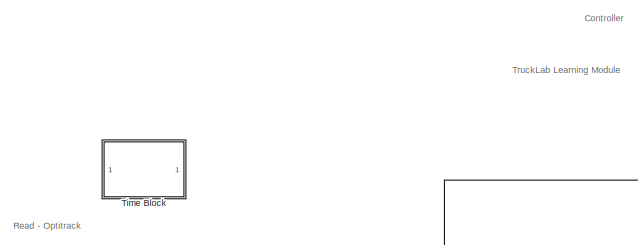
[diagram: root canvas - part 1/2, top left region]
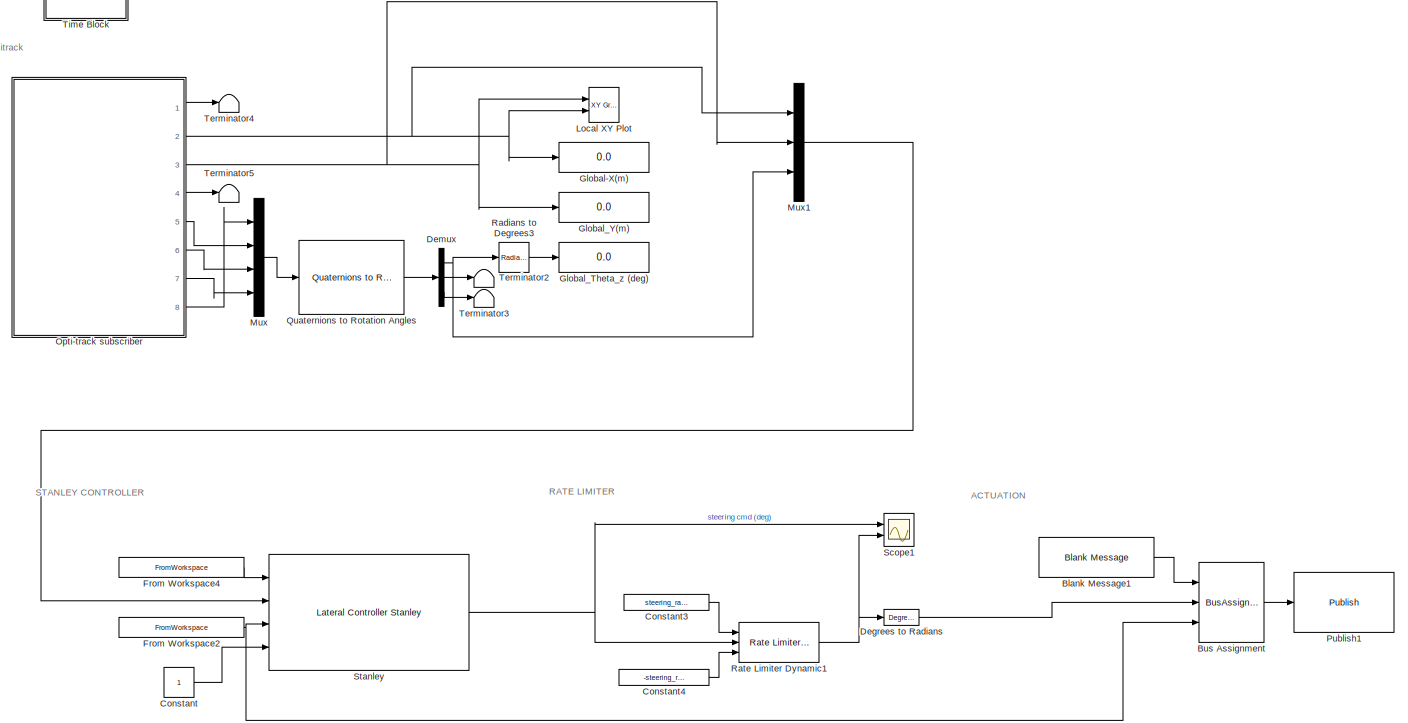
[diagram: root canvas - part 2/2, most of the canvas]
MODEL slx_dc4cd03e8d19
KIND model
CONFIG AbsTol = auto
CONFIG EnableMultiTasking = off
CONFIG FixedStep = auto
CONFIG MaxStep = auto
CONFIG MinStep = auto
CONFIG RelTol = 1e-3
CONFIG SampleTimeConstraint = Unconstrained
CONFIG Solver = FixedStepAuto
CONFIG SolverName = FixedStepAuto
CONFIG StartTime = 0.0
CONFIG StopTime = inf
WORKSPACE source: mxarray member
WORKSPACE SL_ROS_VariableLengthArrays_MaxSizes: object (value not decoded)
BLOCK [Reference] Blank Message1  REF=robotlib/Blank Message
  Ports = [0, 1]
  SourceBlock = robotlib/Blank Message
  SourceProductBaseCode = RR
  SourceType = ROS Blank Message
BLOCK [BusAssignment] Bus Assignment
  AssignedSignals = Angular.Z,Linear.X
  DialogController = Simulink.DDGSource_BusAssignment
  Ports = [3, 1]
BLOCK [Constant] Constant
BLOCK [Constant] Constant3
  Value = steering_rate_limit
BLOCK [Constant] Constant4
  Value = -steering_rate_limit
BLOCK [Reference] Degrees to Radians  REF=simulink_extras/Transformations/Degrees to
Radians
  Ports = [1, 1]
  SourceBlock = simulink_extras/Transformations/Degrees to\nRadians
  SourceProductBaseCode = SL
  SourceType = DegreesToRadians
BLOCK [Demux] Demux
  Outputs = 3
  Ports = [1, 3]
BLOCK [FromWorkspace] From Workspace2
  VariableName = ref_vel
BLOCK [FromWorkspace] From Workspace4
  VariableName = ref_pose
BLOCK [Display] Global-X(m)
  Decimation = 1
  Ports = [1]
BLOCK [Display] Global_Theta_z (deg)
  Decimation = 1
  Ports = [1]
BLOCK [Display] Global_Y(m)
  Decimation = 1
  Ports = [1]
BLOCK [Reference] Local XY Plot  REF=simulink/Sinks/XY Graph
  Ports = [2]
  SourceBlock = simulink/Sinks/XY Graph
  SourceProductBaseCode = SL
  SourceType = XY scope.
BLOCK [Mux] Mux
  DisplayOption = bar
  Ports = [4, 1]
BLOCK [Mux] Mux1
  DisplayOption = bar
  Inputs = 3
  Ports = [3, 1]
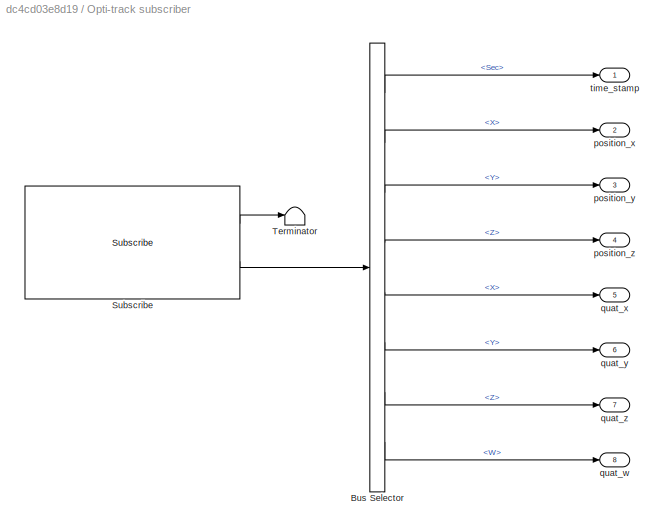
BLOCK [SubSystem] Opti-track subscriber
  Ports = [0, 8]
  RequestExecContextInheritance = off
BLOCK [BusSelector] Opti-track subscriber/Bus Selector
  OutputSignals = Header.Stamp.Sec,Pose.Position.X,Pose.Position.Y,Pose.Position.Z,Pose.Orientation.X,Pose.Orientation.Y,Pose.Orientation.Z,Pose.Orientation.W
  Ports = [1, 8]
BLOCK [Reference] Opti-track subscriber/Subscribe  REF=robotlib/Subscribe
  Ports = [0, 2]
  SourceBlock = robotlib/Subscribe
  SourceProductBaseCode = RR
  SourceType = ROS Subscribe
BLOCK [Terminator] Opti-track subscriber/Terminator
BLOCK [Outport] Opti-track subscriber/position_x
  Port = 2
BLOCK [Outport] Opti-track subscriber/position_y
  Port = 3
BLOCK [Outport] Opti-track subscriber/position_z
  Port = 4
BLOCK [Outport] Opti-track subscriber/quat_w
  Port = 8
BLOCK [Outport] Opti-track subscriber/quat_x
  Port = 5
BLOCK [Outport] Opti-track subscriber/quat_y
  Port = 6
BLOCK [Outport] Opti-track subscriber/quat_z
  Port = 7
BLOCK [Outport] Opti-track subscriber/time_stamp
BLOCK [Reference] Publish1  REF=robotlib/Publish
  Ports = [1]
  SourceBlock = robotlib/Publish
  SourceProductBaseCode = RR
  SourceType = ROS Publish
BLOCK [Reference] Quaternions to Rotation Angles  REF=sharedtransform/Quaternions to Rotation Angles
  AttributesFormatString = Rotation Order: %<rotationOrder>
  Ports = [1, 1]
  SourceBlock = sharedtransform/Quaternions to Rotation Angles
  SourceProductBaseCode = AE,PW,MT,VE,VP
  SourceType = Quat2Ang
BLOCK [Reference] Radians to Degrees3  REF=simulink_extras/Transformations/Radians
to Degrees
  Ports = [1, 1]
  SourceBlock = simulink_extras/Transformations/Radians\nto Degrees
  SourceProductBaseCode = SL
  SourceType = RadiansToDegrees
BLOCK [Reference] Rate Limiter Dynamic1  REF=simulink/Discontinuities/Rate Limiter
Dynamic
  Ports = [3, 1]
  SourceBlock = simulink/Discontinuities/Rate Limiter\nDynamic
  SourceProductBaseCode = SL
  SourceType = Rate Limiter Dynamic
BLOCK [Scope] Scope1
  Floating = off
  NumInputPorts = 2
  Ports = [2]
  ScopeSpecificationString = Simulink.scopes.TimeScopeBlockCfg('CurrentConfiguration', extmgr.ConfigurationSet(extmgr.Configuration('Core','General UI',true),extmgr.Configuration('Core','Source UI',true),extmgr.Configuration('Sources','WiredSimulink',true,'DataLoggingVariableName','ScopeData2'),extmgr.Configuration('Visuals','Time Domain',true,'SerializedDisplays',{struct('MinYLimReal','-4.3883','MaxYLimReal','8.27357','YLabe...<+1388ch>
BLOCK [Reference] Stanley  REF=drivingvehiclecontroller/Lateral Controller Stanley
  Ports = [4, 1]
  SourceBlock = drivingvehiclecontroller/Lateral Controller Stanley
  SourceProductBaseCode = DR
  SourceType = Lateral Controller Stanley
BLOCK [Terminator] Terminator2
BLOCK [Terminator] Terminator3
BLOCK [Terminator] Terminator4
BLOCK [Terminator] Terminator5
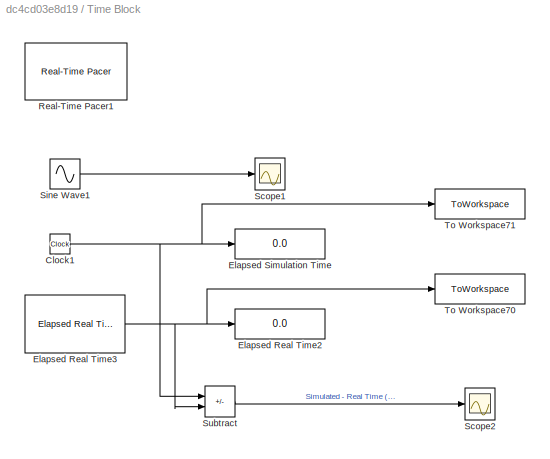
BLOCK [SubSystem] Time Block
  Ports = []
  RequestExecContextInheritance = off
BLOCK [Clock] Time Block/Clock1
BLOCK [Display] Time Block/Elapsed Real Time2
  Decimation = 2
  Ports = [1]
BLOCK [Reference] Time Block/Elapsed Real Time3  REF=realtime_pacer_lib/Elapsed Real Time
  Ports = [0, 1]
  SourceBlock = realtime_pacer_lib/Elapsed Real Time
  SourceType = RealTime_Elapsed
BLOCK [Display] Time Block/Elapsed Simulation Time
  Decimation = 2
  Ports = [1]
BLOCK [Reference] Time Block/Real-Time Pacer1  REF=realtime_pacer_lib/Real-Time Pacer
  Ports = []
  SourceBlock = realtime_pacer_lib/Real-Time Pacer
  SourceType = RealTime_Pacer
BLOCK [Scope] Time Block/Scope1
  Floating = off
  NumInputPorts = 1
  Ports = [1]
  ScopeSpecificationString = Simulink.scopes.TimeScopeBlockCfg('CurrentConfiguration', extmgr.ConfigurationSet(extmgr.Configuration('Core','General UI',true),extmgr.Configuration('Core','Source UI',true),extmgr.Configuration('Sources','WiredSimulink',true,'DataLoggingVariableName','ScopeData1','DataLoggingSaveFormat','StructureWithTime','DataLoggingLimitDataPoints',true,'DataLoggingDecimation','1','DataLoggingDecimateData',tr...<+911ch>
BLOCK [Scope] Time Block/Scope2
  Floating = off
  NumInputPorts = 1
  Ports = [1]
  ScopeSpecificationString = Simulink.scopes.TimeScopeBlockCfg('CurrentConfiguration', extmgr.ConfigurationSet(extmgr.Configuration('Core','General UI',true),extmgr.Configuration('Core','Source UI',true),extmgr.Configuration('Sources','WiredSimulink',true,'DataLoggingSaveFormat','StructureWithTime','DataLoggingLimitDataPoints',true,'DataLoggingDecimation','1','DataLoggingDecimateData',true,'DataLoggingVariableName','ScopeData...<+1641ch>
BLOCK [Sin] Time Block/Sine Wave1
  Frequency = 2*pi*0.5
  Ports = [0, 1]
  SampleTime = 0
BLOCK [Sum] Time Block/Subtract
  IconShape = rectangular
  Inputs = +-
  Ports = [2, 1]
BLOCK [ToWorkspace] Time Block/To Workspace70
  FixptAsFi = on
  MaxDataPoints = inf
  Ports = [1]
  SampleTime = -1
  VariableName = time_real
BLOCK [ToWorkspace] Time Block/To Workspace71
  FixptAsFi = on
  MaxDataPoints = inf
  Ports = [1]
  SampleTime = -1
  VariableName = time
ANNOTATION (root): TruckLab Learning Module
ANNOTATION (root): Controller
ANNOTATION (root): ACTUATION
ANNOTATION (root): RATE LIMITER
ANNOTATION (root): Read - Optitrack
ANNOTATION (root): STANLEY CONTROLLER
LINE Blank Message1:1 -> Bus Assignment:1
LINE Bus Assignment:1 -> Publish1:1
LINE Constant3:1 -> Rate Limiter Dynamic1:1
LINE Constant4:1 -> Rate Limiter Dynamic1:3
LINE Constant:1 -> Stanley:4
LINE Degrees to Radians:1 -> Bus Assignment:2
NET Demux:1 -> Mux1:3, Radians to Degrees3:1
LINE Demux:2 -> Terminator2:1
LINE Demux:3 -> Terminator3:1
NET From Workspace2:1 -> Bus Assignment:3, Stanley:3
LINE From Workspace4:1 -> Stanley:1
LINE Mux1:1 -> Stanley:2
LINE Mux:1 -> Quaternions to Rotation Angles:1
LINE Opti-track subscriber/Bus Selector:1 -> Opti-track subscriber/time_stamp:1
LINE Opti-track subscriber/Bus Selector:2 -> Opti-track subscriber/position_x:1
LINE Opti-track subscriber/Bus Selector:3 -> Opti-track subscriber/position_y:1
LINE Opti-track subscriber/Bus Selector:4 -> Opti-track subscriber/position_z:1
LINE Opti-track subscriber/Bus Selector:5 -> Opti-track subscriber/quat_x:1
LINE Opti-track subscriber/Bus Selector:6 -> Opti-track subscriber/quat_y:1
LINE Opti-track subscriber/Bus Selector:7 -> Opti-track subscriber/quat_z:1
LINE Opti-track subscriber/Bus Selector:8 -> Opti-track subscriber/quat_w:1
LINE Opti-track subscriber/Subscribe:1 -> Opti-track subscriber/Terminator:1
LINE Opti-track subscriber/Subscribe:2 -> Opti-track subscriber/Bus Selector:1
LINE Opti-track subscriber:1 -> Terminator4:1
NET Opti-track subscriber:2 -> Global-X(m):1, Local XY Plot:2, Mux1:1
NET Opti-track subscriber:3 -> Global_Y(m):1, Local XY Plot:1, Mux1:2
LINE Opti-track subscriber:4 -> Terminator5:1
LINE Opti-track subscriber:5 -> Mux:2
LINE Opti-track subscriber:6 -> Mux:3
LINE Opti-track subscriber:7 -> Mux:4
LINE Opti-track subscriber:8 -> Mux:1
LINE Quaternions to Rotation Angles:1 -> Demux:1
LINE Radians to Degrees3:1 -> Global_Theta_z (deg):1
NET Rate Limiter Dynamic1:1 -> Degrees to Radians:1, Scope1:2
NET Stanley:1 -> Rate Limiter Dynamic1:2, Scope1:1
NET Time Block/Clock1:1 -> Time Block/Elapsed Simulation Time:1, Time Block/Subtract:1, Time Block/To Workspace71:1
NET Time Block/Elapsed Real Time3:1 -> Time Block/Elapsed Real Time2:1, Time Block/Subtract:2, Time Block/To Workspace70:1
LINE Time Block/Sine Wave1:1 -> Time Block/Scope1:1
LINE Time Block/Subtract:1 -> Time Block/Scope2:1
note: NET lines group one-source signal fan-out (src -> all destinations, sorted); 1:1 wires keep LINE
